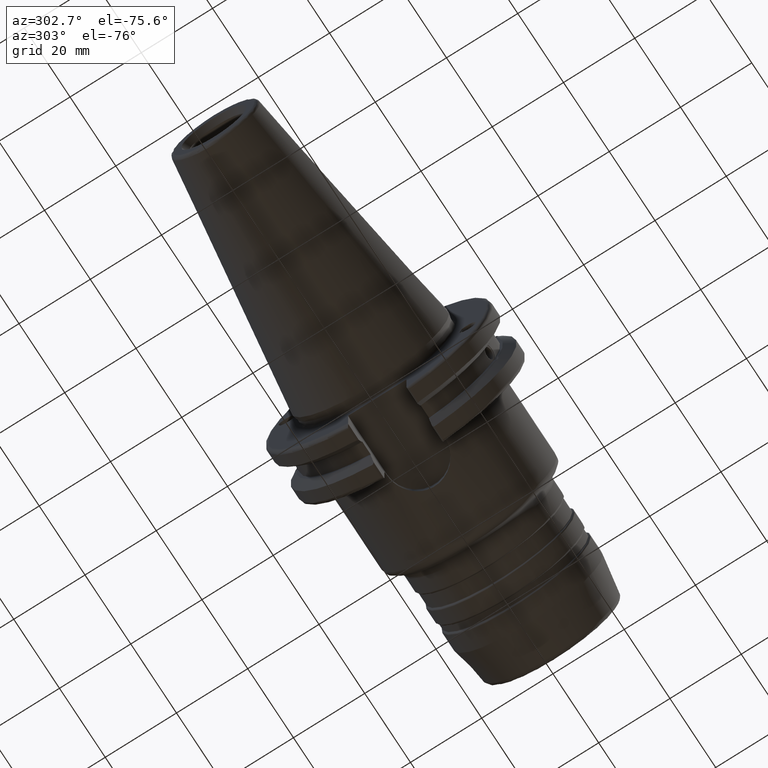
[diagram: clean part render]
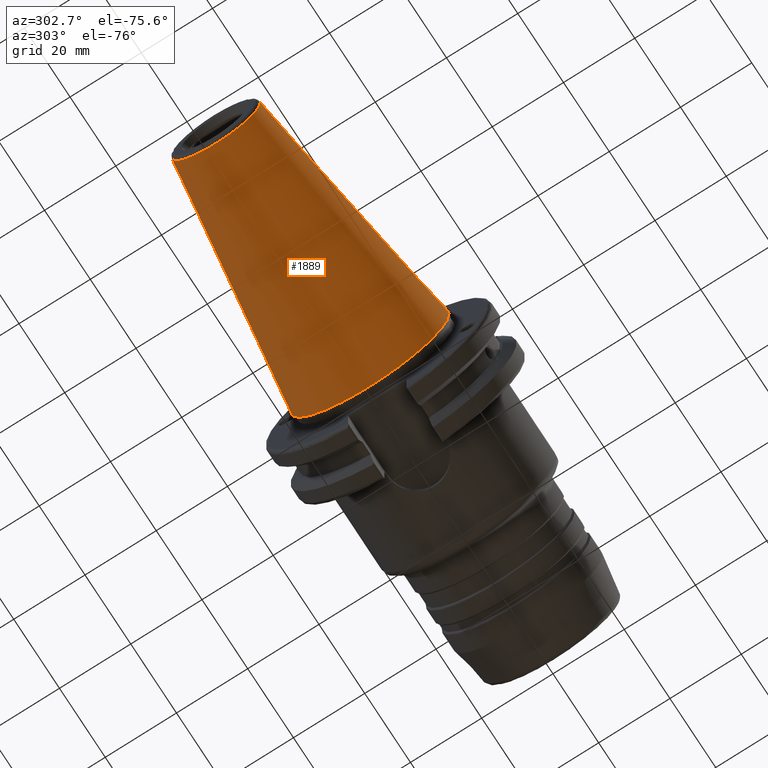
[diagram: same view with one face highlighted and labeled with its STEP entity id]
A machine part, auxiliary view. The second image highlights one B-rep face of the part: STEP entity #1889.
In plain terms, the highlighted conical surface has half-angle 8.297 deg.
Its self-contained STEP definition (entity closure, byte-faithful):
#163=CONICAL_SURFACE('',#2151,17.2484375,0.144812498238939);
#250=FACE_OUTER_BOUND('',#369,.T.);
#369=EDGE_LOOP('',(#1653,#1654,#1655,#1656,#1657));
#478=LINE('',#3660,#572);
#572=VECTOR('',#2705,17.2484375);
#694=CIRCLE('',#2145,12.3966635780937);
#695=CIRCLE('',#2146,12.3966635780937);
#699=CIRCLE('',#2152,22.225);
#890=VERTEX_POINT('',#3647);
#891=VERTEX_POINT('',#3648);
#894=VERTEX_POINT('',#3658);
#1160=EDGE_CURVE('',#890,#891,#694,.T.);
#1161=EDGE_CURVE('',#891,#890,#695,.T.);
#1165=EDGE_CURVE('',#894,#894,#699,.T.);
#1166=EDGE_CURVE('',#894,#891,#478,.T.);
#1653=ORIENTED_EDGE('',*,*,#1165,.F.);
#1654=ORIENTED_EDGE('',*,*,#1166,.T.);
#1655=ORIENTED_EDGE('',*,*,#1160,.F.);
#1656=ORIENTED_EDGE('',*,*,#1161,.F.);
#1657=ORIENTED_EDGE('',*,*,#1166,.F.);
#1889=ADVANCED_FACE('',(#250),#163,.T.);
#2145=AXIS2_PLACEMENT_3D('',#3649,#2689,#2690);
#2146=AXIS2_PLACEMENT_3D('',#3650,#2691,#2692);
#2151=AXIS2_PLACEMENT_3D('',#3657,#2701,#2702);
#2152=AXIS2_PLACEMENT_3D('',#3659,#2703,#2704);
#2689=DIRECTION('center_axis',(-1.,0.,0.));
#2690=DIRECTION('ref_axis',(0.,-1.,3.06161699786838E-17));
#2691=DIRECTION('center_axis',(-1.,0.,0.));
#2692=DIRECTION('ref_axis',(0.,-1.,3.06161699786838E-17));
#2701=DIRECTION('center_axis',(1.,0.,0.));
#2702=DIRECTION('ref_axis',(0.,1.,0.));
#2703=DIRECTION('center_axis',(1.,0.,0.));
#2704=DIRECTION('ref_axis',(0.,0.,-1.));
#2705=DIRECTION('',(-0.989532981063282,0.144306893071729,1.76724974695192E-17));
#3647=CARTESIAN_POINT('',(-67.3943068930717,-1.5181534371019E-15,12.3966635780937));
#3648=CARTESIAN_POINT('',(-67.3943068930718,-12.3966635780937,-1.5181534371019E-15));
#3649=CARTESIAN_POINT('Origin',(-67.3943068930717,0.,-1.89769179637738E-15));
#3650=CARTESIAN_POINT('Origin',(-67.3943068930717,0.,-1.89769179637738E-15));
#3657=CARTESIAN_POINT('Origin',(-34.125,0.,0.));
#3658=CARTESIAN_POINT('',(0.,-22.225,-2.72177751110499E-15));
#3659=CARTESIAN_POINT('Origin',(0.,0.,0.));
#3660=CARTESIAN_POINT('',(-34.125,-17.2484375,-2.11232437746682E-15));